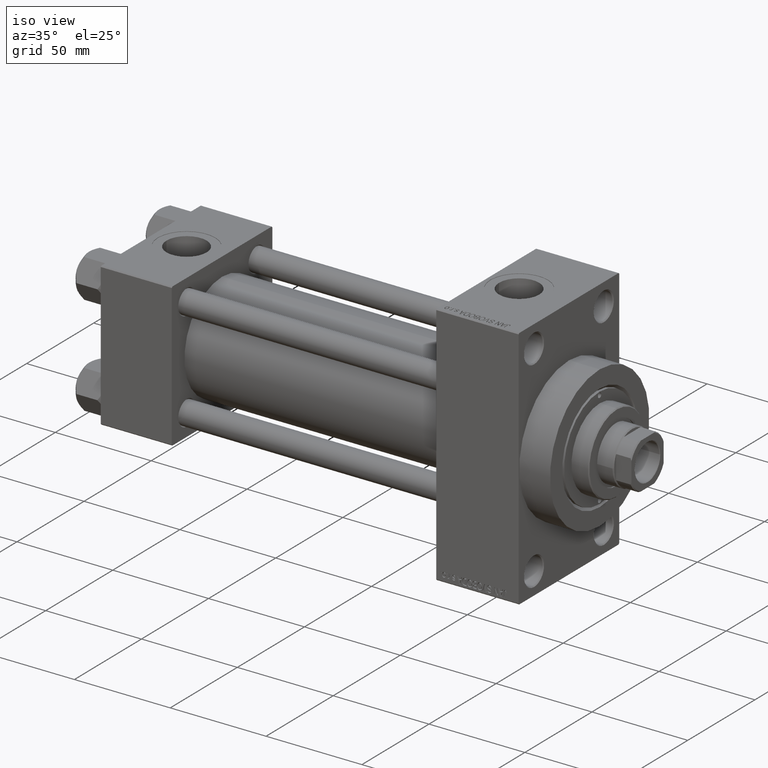
[diagram: clean part render]
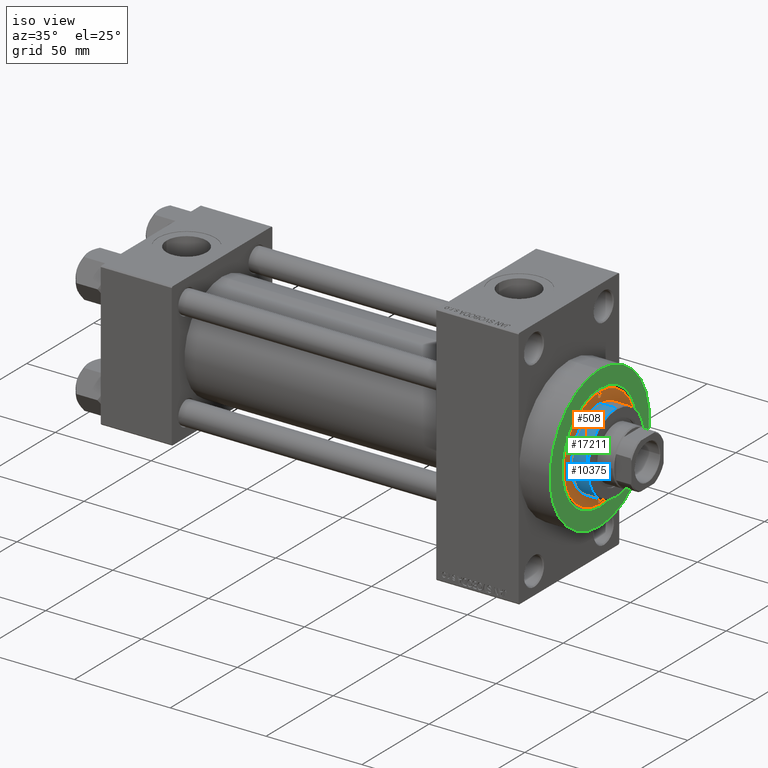
[diagram: same view with three faces highlighted in distinct colors, each labeled with its STEP entity id]
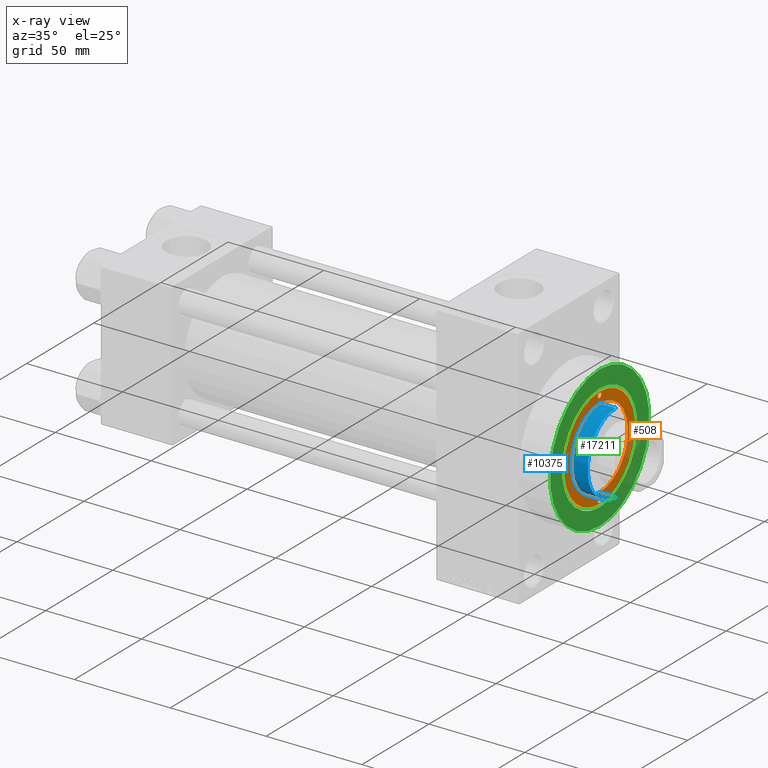
[diagram: x-ray of the same camera — body ghosted, the three highlighted faces saturated]
A machine part, iso view with three faces highlighted in distinct colors.
The next image is the same camera in x-ray (body ghosted, the three faces saturated) — at least one of them is partly hidden behind the body in this view.
Their STEP definitions:

[orange] entity #508 — the highlighted planar face has unit normal (1, -0, -0).
#493 = FACE_BOUND ( 'NONE', #44975, .T. ) ;
#508 = ADVANCED_FACE ( 'NONE', ( #493, #25671, #22548, #29499 ), #11292, .T. ) ;
#659 = CARTESIAN_POINT ( 'NONE',  ( 21.00000000000000000, 2.571758278209441661E-15, 43.25999999999999801 ) ) ;
#1244 = CIRCLE ( 'NONE', #44881, 1.249999999999997558 ) ;
#3012 = DIRECTION ( 'NONE',  ( -0.000000000000000000, -0.000000000000000000, 1.000000000000000000 ) ) ;
#4736 = EDGE_LOOP ( 'NONE', ( #14363, #15902 ) ) ;
#6587 = VERTEX_POINT ( 'NONE', #16337 ) ;
#7083 = DIRECTION ( 'NONE',  ( -0.000000000000000000, -0.000000000000000000, 1.000000000000000000 ) ) ;
#7493 = DIRECTION ( 'NONE',  ( 1.000000000000000000, 0.000000000000000000, 0.000000000000000000 ) ) ;
#9262 = AXIS2_PLACEMENT_3D ( 'NONE', #16239, #33492, #12397 ) ;
#9362 = VERTEX_POINT ( 'NONE', #16433 ) ;
#9811 = AXIS2_PLACEMENT_3D ( 'NONE', #30779, #45414, #12574 ) ;
#9954 = DIRECTION ( 'NONE',  ( 1.000000000000000000, 0.000000000000000000, 0.000000000000000000 ) ) ;
#10452 = DIRECTION ( 'NONE',  ( 1.000000000000000000, 0.000000000000000000, 0.000000000000000000 ) ) ;
#10679 = DIRECTION ( 'NONE',  ( 1.000000000000000000, 0.000000000000000000, 0.000000000000000000 ) ) ;
#11000 = AXIS2_PLACEMENT_3D ( 'NONE', #25938, #12460, #7493 ) ;
#11292 = PLANE ( 'NONE',  #45895 ) ;
#11480 = CIRCLE ( 'NONE', #38269, 26.50000000000000355 ) ;
#11482 = DIRECTION ( 'NONE',  ( 1.000000000000000000, 0.000000000000000000, 0.000000000000000000 ) ) ;
#12397 = DIRECTION ( 'NONE',  ( 1.000000000000000000, 0.000000000000000000, 0.000000000000000000 ) ) ;
#12460 = DIRECTION ( 'NONE',  ( 0.000000000000000000, 0.000000000000000000, 1.000000000000000000 ) ) ;
#12574 = DIRECTION ( 'NONE',  ( 1.000000000000000000, 0.000000000000000000, 0.000000000000000000 ) ) ;
#13337 = EDGE_CURVE ( 'NONE', #40765, #29832, #15648, .T. ) ;
#14363 = ORIENTED_EDGE ( 'NONE', *, *, #47055, .F. ) ;
#14695 = CARTESIAN_POINT ( 'NONE',  ( -23.50000000000000355, 0.000000000000000000, 43.25999999999999801 ) ) ;
#15648 = CIRCLE ( 'NONE', #43174, 1.249999999999997558 ) ;
#15902 = ORIENTED_EDGE ( 'NONE', *, *, #25893, .F. ) ;
#16239 = CARTESIAN_POINT ( 'NONE',  ( 0.000000000000000000, 0.000000000000000000, 43.25999999999999801 ) ) ;
#16337 = CARTESIAN_POINT ( 'NONE',  ( 26.50000000000000355, 3.245314017740486554E-15, 43.25999999999999801 ) ) ;
#16433 = CARTESIAN_POINT ( 'NONE',  ( 26.00000000000000000, 0.000000000000000000, 43.25999999999999801 ) ) ;
#16455 = CARTESIAN_POINT ( 'NONE',  ( -24.75000000000000000, 0.000000000000000000, 43.25999999999999801 ) ) ;
#18434 = CARTESIAN_POINT ( 'NONE',  ( 24.75000000000000000, 0.000000000000000000, 43.25999999999999801 ) ) ;
#20168 = CIRCLE ( 'NONE', #11000, 21.00000000000000000 ) ;
#20512 = CIRCLE ( 'NONE', #9811, 21.00000000000000000 ) ;
#21338 = EDGE_CURVE ( 'NONE', #9362, #30132, #1244, .T. ) ;
#22045 = CIRCLE ( 'NONE', #35165, 1.249999999999997558 ) ;
#22548 = FACE_BOUND ( 'NONE', #4736, .T. ) ;
#23086 = VERTEX_POINT ( 'NONE', #29491 ) ;
#24146 = VERTEX_POINT ( 'NONE', #659 ) ;
#25671 = FACE_BOUND ( 'NONE', #26744, .T. ) ;
#25893 = EDGE_CURVE ( 'NONE', #24146, #38419, #20512, .T. ) ;
#25898 = DIRECTION ( 'NONE',  ( 1.000000000000000000, 0.000000000000000000, -0.000000000000000000 ) ) ;
#25938 = CARTESIAN_POINT ( 'NONE',  ( 0.000000000000000000, 0.000000000000000000, 43.25999999999999801 ) ) ;
#26744 = EDGE_LOOP ( 'NONE', ( #42611, #27785 ) ) ;
#27730 = AXIS2_PLACEMENT_3D ( 'NONE', #32727, #7083, #10679 ) ;
#27785 = ORIENTED_EDGE ( 'NONE', *, *, #43315, .F. ) ;
#27857 = CARTESIAN_POINT ( 'NONE',  ( 23.50000000000000355, 1.530808498934188612E-16, 43.25999999999999801 ) ) ;
#28312 = ORIENTED_EDGE ( 'NONE', *, *, #35430, .T. ) ;
#28417 = ORIENTED_EDGE ( 'NONE', *, *, #37041, .T. ) ;
#28688 = EDGE_CURVE ( 'NONE', #29832, #40765, #22045, .T. ) ;
#29491 = CARTESIAN_POINT ( 'NONE',  ( -26.50000000000000355, 0.000000000000000000, 43.25999999999999801 ) ) ;
#29499 = FACE_OUTER_BOUND ( 'NONE', #34292, .T. ) ;
#29722 = CARTESIAN_POINT ( 'NONE',  ( -26.00000000000000000, 1.530808498934188612E-16, 43.25999999999999801 ) ) ;
#29832 = VERTEX_POINT ( 'NONE', #14695 ) ;
#30070 = DIRECTION ( 'NONE',  ( 0.000000000000000000, 0.000000000000000000, 1.000000000000000000 ) ) ;
#30132 = VERTEX_POINT ( 'NONE', #27857 ) ;
#30779 = CARTESIAN_POINT ( 'NONE',  ( 0.000000000000000000, 0.000000000000000000, 43.25999999999999801 ) ) ;
#32727 = CARTESIAN_POINT ( 'NONE',  ( 24.75000000000000000, 0.000000000000000000, 43.25999999999999801 ) ) ;
#33157 = CARTESIAN_POINT ( 'NONE',  ( -21.00000000000000000, 0.000000000000000000, 43.25999999999999801 ) ) ;
#33492 = DIRECTION ( 'NONE',  ( 0.000000000000000000, 0.000000000000000000, 1.000000000000000000 ) ) ;
#34292 = EDGE_LOOP ( 'NONE', ( #28312, #28417 ) ) ;
#35165 = AXIS2_PLACEMENT_3D ( 'NONE', #16455, #42074, #9954 ) ;
#35430 = EDGE_CURVE ( 'NONE', #23086, #6587, #11480, .T. ) ;
#36897 = CIRCLE ( 'NONE', #27730, 1.249999999999997558 ) ;
#36931 = DIRECTION ( 'NONE',  ( 0.000000000000000000, 0.000000000000000000, 1.000000000000000000 ) ) ;
#37041 = EDGE_CURVE ( 'NONE', #6587, #23086, #45222, .T. ) ;
#37741 = DIRECTION ( 'NONE',  ( 1.000000000000000000, 0.000000000000000000, 0.000000000000000000 ) ) ;
#38269 = AXIS2_PLACEMENT_3D ( 'NONE', #45419, #30070, #37741 ) ;
#38419 = VERTEX_POINT ( 'NONE', #33157 ) ;
#38511 = ORIENTED_EDGE ( 'NONE', *, *, #28688, .F. ) ;
#40294 = CARTESIAN_POINT ( 'NONE',  ( 0.000000000000000000, 0.000000000000000000, 43.25999999999999801 ) ) ;
#40765 = VERTEX_POINT ( 'NONE', #29722 ) ;
#40956 = DIRECTION ( 'NONE',  ( -0.000000000000000000, -0.000000000000000000, 1.000000000000000000 ) ) ;
#42074 = DIRECTION ( 'NONE',  ( -0.000000000000000000, -0.000000000000000000, 1.000000000000000000 ) ) ;
#42611 = ORIENTED_EDGE ( 'NONE', *, *, #21338, .F. ) ;
#43174 = AXIS2_PLACEMENT_3D ( 'NONE', #43518, #3012, #10452 ) ;
#43315 = EDGE_CURVE ( 'NONE', #30132, #9362, #36897, .T. ) ;
#43518 = CARTESIAN_POINT ( 'NONE',  ( -24.75000000000000000, 0.000000000000000000, 43.25999999999999801 ) ) ;
#44881 = AXIS2_PLACEMENT_3D ( 'NONE', #18434, #40956, #11482 ) ;
#44975 = EDGE_LOOP ( 'NONE', ( #38511, #45812 ) ) ;
#45222 = CIRCLE ( 'NONE', #9262, 26.50000000000000355 ) ;
#45414 = DIRECTION ( 'NONE',  ( 0.000000000000000000, 0.000000000000000000, 1.000000000000000000 ) ) ;
#45419 = CARTESIAN_POINT ( 'NONE',  ( 0.000000000000000000, 0.000000000000000000, 43.25999999999999801 ) ) ;
#45812 = ORIENTED_EDGE ( 'NONE', *, *, #13337, .F. ) ;
#45895 = AXIS2_PLACEMENT_3D ( 'NONE', #40294, #36931, #25898 ) ;
#47055 = EDGE_CURVE ( 'NONE', #38419, #24146, #20168, .T. ) ;

[blue] entity #10375 — the highlighted cylindrical surface (partial cylindrical patch) has radius 21 mm, axis along (-1, 0, 0).
#659 = CARTESIAN_POINT ( 'NONE',  ( 21.00000000000000000, 2.571758278209441661E-15, 43.25999999999999801 ) ) ;
#1613 = AXIS2_PLACEMENT_3D ( 'NONE', #4778, #45294, #34025 ) ;
#3386 = EDGE_CURVE ( 'NONE', #32532, #36641, #42160, .T. ) ;
#4778 = CARTESIAN_POINT ( 'NONE',  ( 0.000000000000000000, 0.000000000000000000, 51.75999999999999801 ) ) ;
#5141 = LINE ( 'NONE', #23833, #25783 ) ;
#7617 = VECTOR ( 'NONE', #8175, 1000.000000000000000 ) ;
#8175 = DIRECTION ( 'NONE',  ( -0.000000000000000000, -0.000000000000000000, -1.000000000000000000 ) ) ;
#9214 = DIRECTION ( 'NONE',  ( -0.000000000000000000, -0.000000000000000000, -1.000000000000000000 ) ) ;
#9811 = AXIS2_PLACEMENT_3D ( 'NONE', #30779, #45414, #12574 ) ;
#10375 = ADVANCED_FACE ( 'NONE', ( #46437 ), #16735, .T. ) ;
#12574 = DIRECTION ( 'NONE',  ( 1.000000000000000000, 0.000000000000000000, 0.000000000000000000 ) ) ;
#16735 = CYLINDRICAL_SURFACE ( 'NONE', #23985, 21.00000000000000000 ) ;
#20322 = CARTESIAN_POINT ( 'NONE',  ( 0.000000000000000000, 0.000000000000000000, 52.25999999999999801 ) ) ;
#20512 = CIRCLE ( 'NONE', #9811, 21.00000000000000000 ) ;
#22477 = EDGE_CURVE ( 'NONE', #36641, #24146, #5141, .T. ) ;
#23833 = CARTESIAN_POINT ( 'NONE',  ( 21.00000000000000000, 2.571758278209441661E-15, 52.25999999999999801 ) ) ;
#23985 = AXIS2_PLACEMENT_3D ( 'NONE', #20322, #42131, #31342 ) ;
#24146 = VERTEX_POINT ( 'NONE', #659 ) ;
#25783 = VECTOR ( 'NONE', #9214, 1000.000000000000000 ) ;
#25893 = EDGE_CURVE ( 'NONE', #24146, #38419, #20512, .T. ) ;
#26153 = LINE ( 'NONE', #40536, #7617 ) ;
#26790 = ORIENTED_EDGE ( 'NONE', *, *, #29120, .F. ) ;
#29120 = EDGE_CURVE ( 'NONE', #32532, #38419, #26153, .T. ) ;
#30779 = CARTESIAN_POINT ( 'NONE',  ( 0.000000000000000000, 0.000000000000000000, 43.25999999999999801 ) ) ;
#31342 = DIRECTION ( 'NONE',  ( -1.000000000000000000, 0.000000000000000000, 0.000000000000000000 ) ) ;
#32532 = VERTEX_POINT ( 'NONE', #33722 ) ;
#32608 = CARTESIAN_POINT ( 'NONE',  ( 21.00000000000000000, 2.571758278209441661E-15, 51.75999999999999801 ) ) ;
#33157 = CARTESIAN_POINT ( 'NONE',  ( -21.00000000000000000, 0.000000000000000000, 43.25999999999999801 ) ) ;
#33722 = CARTESIAN_POINT ( 'NONE',  ( -21.00000000000000000, 0.000000000000000000, 51.75999999999999801 ) ) ;
#33953 = EDGE_LOOP ( 'NONE', ( #34470, #47275, #40398, #26790 ) ) ;
#34025 = DIRECTION ( 'NONE',  ( 1.000000000000000000, 0.000000000000000000, 0.000000000000000000 ) ) ;
#34470 = ORIENTED_EDGE ( 'NONE', *, *, #3386, .T. ) ;
#36641 = VERTEX_POINT ( 'NONE', #32608 ) ;
#38419 = VERTEX_POINT ( 'NONE', #33157 ) ;
#40398 = ORIENTED_EDGE ( 'NONE', *, *, #25893, .T. ) ;
#40536 = CARTESIAN_POINT ( 'NONE',  ( -21.00000000000000000, 0.000000000000000000, 52.25999999999999801 ) ) ;
#42131 = DIRECTION ( 'NONE',  ( -0.000000000000000000, -0.000000000000000000, -1.000000000000000000 ) ) ;
#42160 = CIRCLE ( 'NONE', #1613, 21.00000000000000000 ) ;
#45294 = DIRECTION ( 'NONE',  ( 0.000000000000000000, 0.000000000000000000, -1.000000000000000000 ) ) ;
#45414 = DIRECTION ( 'NONE',  ( 0.000000000000000000, 0.000000000000000000, 1.000000000000000000 ) ) ;
#46437 = FACE_OUTER_BOUND ( 'NONE', #33953, .T. ) ;
#47275 = ORIENTED_EDGE ( 'NONE', *, *, #22477, .T. ) ;

[green] entity #17211 — the highlighted planar face has unit normal (1, 0, 0).
#831 = EDGE_CURVE ( 'NONE', #31533, #38008, #19883, .T. ) ;
#1124 = CARTESIAN_POINT ( 'NONE',  ( 234.0000000000000284, 0.000000000000000000, 0.000000000000000000 ) ) ;
#1158 = FACE_BOUND ( 'NONE', #14369, .T. ) ;
#3706 = EDGE_CURVE ( 'NONE', #38008, #31533, #38352, .T. ) ;
#4681 = AXIS2_PLACEMENT_3D ( 'NONE', #36363, #29627, #40190 ) ;
#5771 = EDGE_CURVE ( 'NONE', #39543, #6869, #11564, .T. ) ;
#6173 = DIRECTION ( 'NONE',  ( 0.000000000000000000, 0.000000000000000000, -1.000000000000000000 ) ) ;
#6869 = VERTEX_POINT ( 'NONE', #8779 ) ;
#7611 = DIRECTION ( 'NONE',  ( 0.000000000000000000, 0.000000000000000000, -1.000000000000000000 ) ) ;
#7638 = EDGE_LOOP ( 'NONE', ( #11949, #39990 ) ) ;
#7838 = ORIENTED_EDGE ( 'NONE', *, *, #5771, .T. ) ;
#8779 = CARTESIAN_POINT ( 'NONE',  ( 234.0000000000000284, 0.000000000000000000, -27.99999999999999645 ) ) ;
#10364 = EDGE_CURVE ( 'NONE', #6869, #39543, #17871, .T. ) ;
#10971 = CARTESIAN_POINT ( 'NONE',  ( 234.0000000000000284, 4.531193156845206793E-15, -37.00000000000000000 ) ) ;
#11564 = CIRCLE ( 'NONE', #4681, 27.99999999999999645 ) ;
#11949 = ORIENTED_EDGE ( 'NONE', *, *, #3706, .T. ) ;
#14368 = CARTESIAN_POINT ( 'NONE',  ( 234.0000000000000284, 0.000000000000000000, 0.000000000000000000 ) ) ;
#14369 = EDGE_LOOP ( 'NONE', ( #41883, #7838 ) ) ;
#15473 = CARTESIAN_POINT ( 'NONE',  ( 234.0000000000000284, 3.429011037612588881E-15, 27.99999999999999645 ) ) ;
#16505 = CARTESIAN_POINT ( 'NONE',  ( 234.0000000000000284, 0.000000000000000000, 0.000000000000000000 ) ) ;
#17211 = ADVANCED_FACE ( 'NONE', ( #1158, #37826 ), #23221, .T. ) ;
#17871 = CIRCLE ( 'NONE', #37768, 27.99999999999999645 ) ;
#19616 = DIRECTION ( 'NONE',  ( 0.000000000000000000, 0.000000000000000000, -1.000000000000000000 ) ) ;
#19883 = CIRCLE ( 'NONE', #44344, 37.00000000000000000 ) ;
#23221 = PLANE ( 'NONE',  #31706 ) ;
#23452 = DIRECTION ( 'NONE',  ( 1.000000000000000000, 0.000000000000000000, 0.000000000000000000 ) ) ;
#26796 = CARTESIAN_POINT ( 'NONE',  ( 234.0000000000000284, 0.000000000000000000, 0.000000000000000000 ) ) ;
#27745 = DIRECTION ( 'NONE',  ( -1.000000000000000000, -0.000000000000000000, -0.000000000000000000 ) ) ;
#28961 = DIRECTION ( 'NONE',  ( 1.000000000000000000, 0.000000000000000000, 0.000000000000000000 ) ) ;
#29627 = DIRECTION ( 'NONE',  ( -1.000000000000000000, -0.000000000000000000, -0.000000000000000000 ) ) ;
#31533 = VERTEX_POINT ( 'NONE', #10971 ) ;
#31706 = AXIS2_PLACEMENT_3D ( 'NONE', #26796, #23452, #19616 ) ;
#35470 = DIRECTION ( 'NONE',  ( 0.000000000000000000, 0.000000000000000000, -1.000000000000000000 ) ) ;
#36363 = CARTESIAN_POINT ( 'NONE',  ( 234.0000000000000284, 0.000000000000000000, 0.000000000000000000 ) ) ;
#37768 = AXIS2_PLACEMENT_3D ( 'NONE', #16505, #27745, #6173 ) ;
#37826 = FACE_OUTER_BOUND ( 'NONE', #7638, .T. ) ;
#38008 = VERTEX_POINT ( 'NONE', #43057 ) ;
#38352 = CIRCLE ( 'NONE', #42939, 37.00000000000000000 ) ;
#39543 = VERTEX_POINT ( 'NONE', #15473 ) ;
#39990 = ORIENTED_EDGE ( 'NONE', *, *, #831, .T. ) ;
#40190 = DIRECTION ( 'NONE',  ( 0.000000000000000000, 0.000000000000000000, -1.000000000000000000 ) ) ;
#40678 = DIRECTION ( 'NONE',  ( 1.000000000000000000, 0.000000000000000000, 0.000000000000000000 ) ) ;
#41883 = ORIENTED_EDGE ( 'NONE', *, *, #10364, .T. ) ;
#42939 = AXIS2_PLACEMENT_3D ( 'NONE', #1124, #40678, #7611 ) ;
#43057 = CARTESIAN_POINT ( 'NONE',  ( 234.0000000000000284, 0.000000000000000000, 37.00000000000000000 ) ) ;
#44344 = AXIS2_PLACEMENT_3D ( 'NONE', #14368, #28961, #35470 ) ;